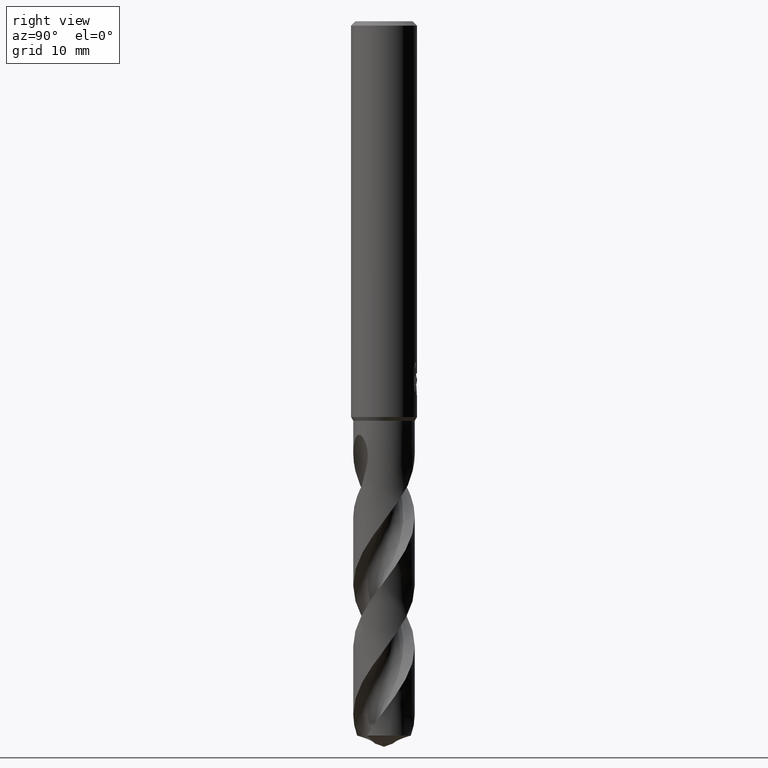
[diagram: clean part render]
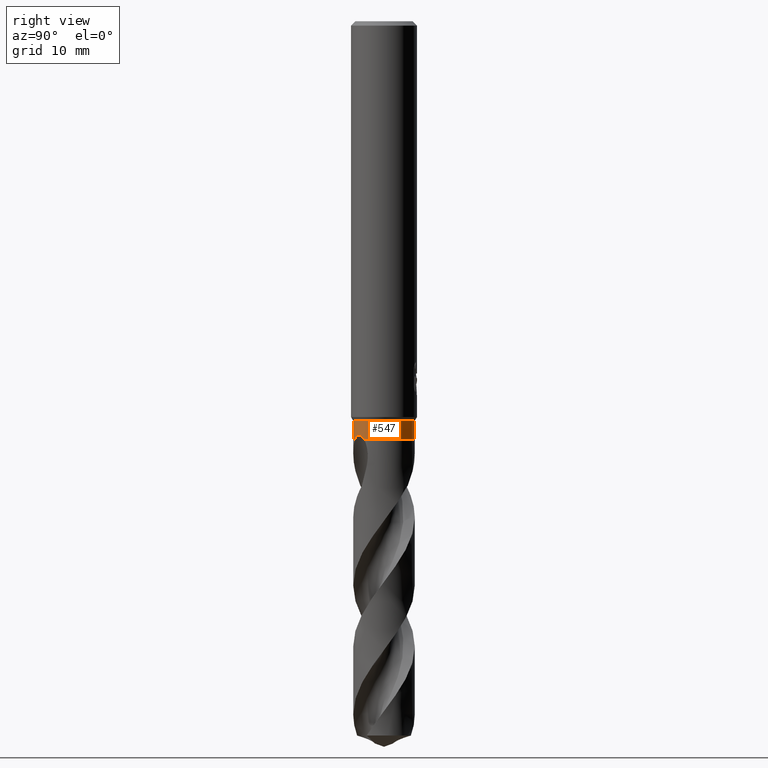
[diagram: same view with one face highlighted and labeled with its STEP entity id]
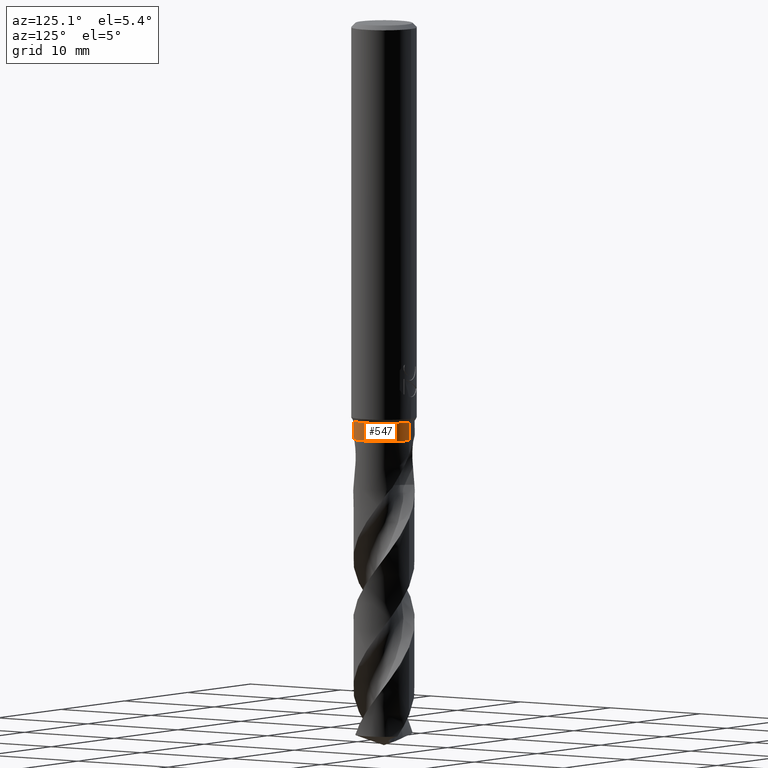
[diagram: same view with one face highlighted and labeled with its STEP entity id]
A machine part, right view. The second image highlights one B-rep face of the part: STEP entity #547.
A second angle (auxiliary view) of the same face is appended — the face is thin or edge-on in the first view.
In plain terms, the highlighted cylindrical surface (edge-blend (fillet) strip) has radius 2.8 mm, axis along (-0, -0, 1).
Its self-contained STEP definition (entity closure, byte-faithful):
#319=EDGE_CURVE('',#591,#671,#816,.T.);
#321=EDGE_CURVE('',#355,#719,#818,.T.);
#355=VERTEX_POINT('',#855);
#365=EDGE_CURVE('',#671,#719,#865,.T.);
#391=EDGE_CURVE('',#355,#683,#892,.T.);
#415=EDGE_CURVE('',#683,#569,#918,.T.);
#547=ADVANCED_FACE('',(#1062),#1063,.T.);
#569=VERTEX_POINT('',#1086);
#579=EDGE_CURVE('',#591,#569,#1097,.T.);
#591=VERTEX_POINT('',#1109);
#671=VERTEX_POINT('',#1196);
#683=VERTEX_POINT('',#1212);
#719=VERTEX_POINT('',#1250);
#816=LINE('',#1690,#1691);
#818=B_SPLINE_CURVE_WITH_KNOTS('',3,(#1694,#1695,#1696,#1697,#1698,#1699,#1700,#1701,#1702,#1703,#1704,#1705),.UNSPECIFIED.,.F.,.F.,(4,2,2,2,2,4),(0.0,0.528583270371316,0.849742654510173,1.11378744802161,1.37993615816331,1.66523210660463),.UNSPECIFIED.);
#855=CARTESIAN_POINT('',(0.956082037257865,-2.63171182655565,-38.0));
#865=CIRCLE('',#2162,2.8);
#892=CIRCLE('',#2266,2.8);
#918=LINE('',#2310,#2311);
#1062=FACE_OUTER_BOUND('',#4270,.T.);
#1063=CYLINDRICAL_SURFACE('',#4271,2.8);
#1086=CARTESIAN_POINT('',(3.42889779070266E-016,-2.8,-36.3464101615138));
#1097=CIRCLE('',#4530,2.8);
#1109=CARTESIAN_POINT('',(0.0,2.8,-36.3464101615138));
#1196=CARTESIAN_POINT('',(-3.42889779070266E-016,2.8,-38.0));
#1212=CARTESIAN_POINT('',(3.42889779070266E-016,-2.8,-38.0));
#1250=CARTESIAN_POINT('',(2.12056284246665,-1.82844557784741,-38.0));
#1690=CARTESIAN_POINT('',(-3.42889779070266E-016,2.8,-37.1732050807569));
#1691=VECTOR('',#5171,1.0);
#1694=CARTESIAN_POINT('',(0.956082037257864,-2.63171182655565,-38.0));
#1695=CARTESIAN_POINT('',(1.07799783818164,-2.58742069021429,-37.880755261818));
#1696=CARTESIAN_POINT('',(1.21443345636628,-2.52808205330379,-37.769072298658));
#1697=CARTESIAN_POINT('',(1.44144856252073,-2.40246575984199,-37.6563409972981));
#1698=CARTESIAN_POINT('',(1.52927231098431,-2.34791746225678,-37.628982590723));
#1699=CARTESIAN_POINT('',(1.68806445419986,-2.23565149362929,-37.6226233239746));
#1700=CARTESIAN_POINT('',(1.75546096854329,-2.18292974685813,-37.6360802209844));
#1701=CARTESIAN_POINT('',(1.88161421080479,-2.07520183555183,-37.6955522461306));
#1702=CARTESIAN_POINT('',(1.93726836281942,-2.02282071964981,-37.7403801127236));
#1703=CARTESIAN_POINT('',(2.0385804118528,-1.92086428653675,-37.8543097146816));
#1704=CARTESIAN_POINT('',(2.08290003962137,-1.87212548892843,-37.9245150022301));
#1705=CARTESIAN_POINT('',(2.12056284246665,-1.82844557784741,-38.0));
#2162=AXIS2_PLACEMENT_3D('',#5202,#5203,#5204);
#2266=AXIS2_PLACEMENT_3D('',#5226,#5227,#5228);
#2310=CARTESIAN_POINT('',(3.42889779070266E-016,-2.8,-37.1732050807569));
#2311=VECTOR('',#5256,1.0);
#4270=EDGE_LOOP('',(#5409,#5410,#5411,#5412,#5413,#5414));
#4271=AXIS2_PLACEMENT_3D('',#5415,#5416,#5417);
#4530=AXIS2_PLACEMENT_3D('',#5434,#5435,#5436);
#5171=DIRECTION('',(0.0,0.0,-1.0));
#5202=CARTESIAN_POINT('',(0.0,0.0,-38.0));
#5203=DIRECTION('',(0.0,0.0,-1.0));
#5204=DIRECTION('',(0.0,1.0,0.0));
#5226=CARTESIAN_POINT('',(0.0,0.0,-38.0));
#5227=DIRECTION('',(0.0,0.0,-1.0));
#5228=DIRECTION('',(0.0,1.0,0.0));
#5256=DIRECTION('',(-0.0,-0.0,1.0));
#5409=ORIENTED_EDGE('',*,*,#319,.F.);
#5410=ORIENTED_EDGE('',*,*,#579,.T.);
#5411=ORIENTED_EDGE('',*,*,#415,.F.);
#5412=ORIENTED_EDGE('',*,*,#391,.F.);
#5413=ORIENTED_EDGE('',*,*,#321,.T.);
#5414=ORIENTED_EDGE('',*,*,#365,.F.);
#5415=CARTESIAN_POINT('',(0.0,0.0,-37.1732050807569));
#5416=DIRECTION('',(-0.0,-0.0,1.0));
#5417=DIRECTION('',(0.0,1.0,0.0));
#5434=CARTESIAN_POINT('',(0.0,0.0,-36.3464101615138));
#5435=DIRECTION('',(0.0,0.0,-1.0));
#5436=DIRECTION('',(0.0,1.0,0.0));